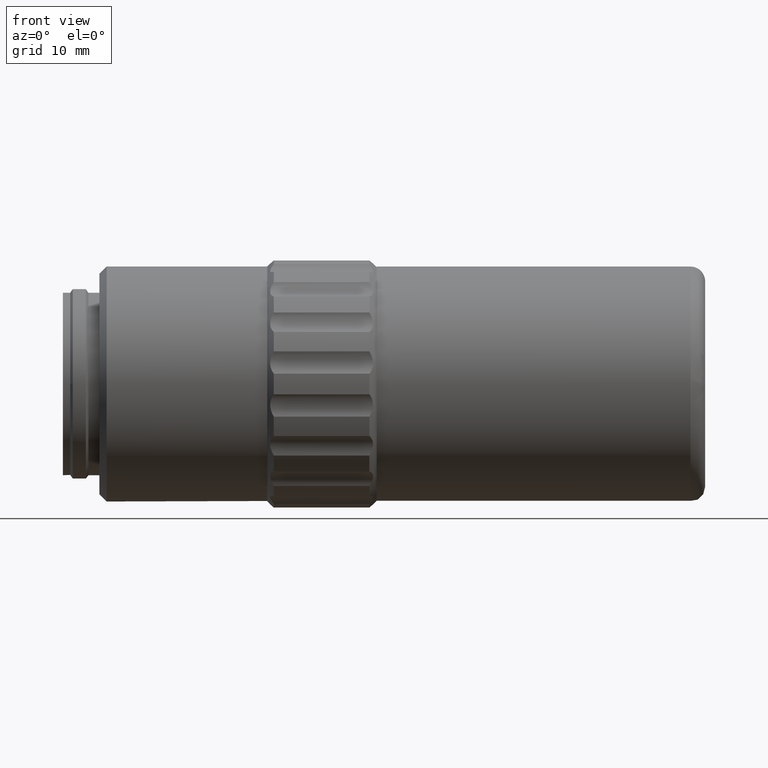
[diagram: clean part render]
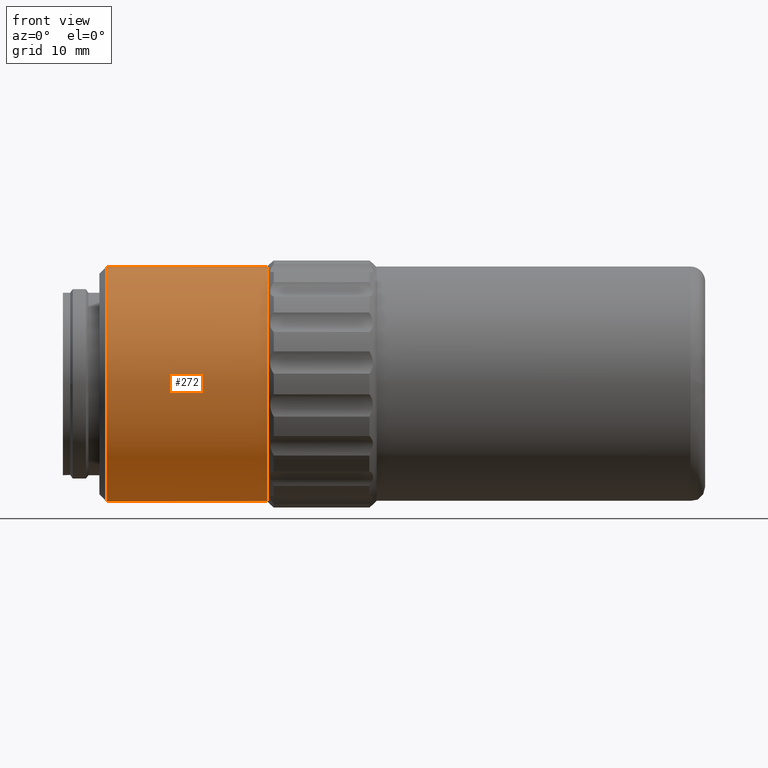
[diagram: same view with one face highlighted and labeled with its STEP entity id]
A machine part, front view. The second image highlights one B-rep face of the part: STEP entity #272.
In plain terms, the highlighted cylindrical surface (bore or boss wall) has radius 16.1 mm, axis along (-1, 0, 0).
Its self-contained STEP definition (entity closure, byte-faithful):
#21 = DIRECTION ( 'NONE',  ( 1.000000000000000000, -0.000000000000000000, -0.000000000000000000 ) ) ;
#137 = EDGE_LOOP ( 'NONE', ( #648 ) ) ;
#272 = ADVANCED_FACE ( 'NONE', ( #618, #280 ), #963, .T. ) ;
#280 = FACE_OUTER_BOUND ( 'NONE', #1927, .T. ) ;
#353 = CARTESIAN_POINT ( 'NONE',  ( 13.33704000000000001, 46.02096199999999726, 0.000000000000000000 ) ) ;
#395 = CARTESIAN_POINT ( 'NONE',  ( 35.33704000000000178, 29.92096199999999584, 0.000000000000000000 ) ) ;
#550 = DIRECTION ( 'NONE',  ( 0.000000000000000000, 0.000000000000000000, 1.000000000000000000 ) ) ;
#608 = DIRECTION ( 'NONE',  ( -1.000000000000000000, 0.000000000000000000, 0.000000000000000000 ) ) ;
#618 = FACE_OUTER_BOUND ( 'NONE', #137, .T. ) ;
#648 = ORIENTED_EDGE ( 'NONE', *, *, #828, .T. ) ;
#651 = AXIS2_PLACEMENT_3D ( 'NONE', #353, #21, #550 ) ;
#685 = ORIENTED_EDGE ( 'NONE', *, *, #1217, .F. ) ;
#828 = EDGE_CURVE ( 'NONE', #1160, #1160, #1796, .T. ) ;
#866 = CIRCLE ( 'NONE', #1328, 16.10000000000000142 ) ;
#963 = CYLINDRICAL_SURFACE ( 'NONE', #2092, 16.10000000000000142 ) ;
#1080 = VERTEX_POINT ( 'NONE', #395 ) ;
#1160 = VERTEX_POINT ( 'NONE', #2025 ) ;
#1217 = EDGE_CURVE ( 'NONE', #1080, #1080, #866, .T. ) ;
#1328 = AXIS2_PLACEMENT_3D ( 'NONE', #1848, #2166, #1837 ) ;
#1665 = DIRECTION ( 'NONE',  ( 0.000000000000000000, 0.000000000000000000, 1.000000000000000000 ) ) ;
#1796 = CIRCLE ( 'NONE', #651, 16.10000000000000142 ) ;
#1837 = DIRECTION ( 'NONE',  ( 0.000000000000000000, -1.000000000000000000, 0.000000000000000000 ) ) ;
#1848 = CARTESIAN_POINT ( 'NONE',  ( 35.33704000000000178, 46.02096199999999726, 0.000000000000000000 ) ) ;
#1927 = EDGE_LOOP ( 'NONE', ( #685 ) ) ;
#2025 = CARTESIAN_POINT ( 'NONE',  ( 13.33704000000000001, 46.02096199999999726, 16.10000000000000142 ) ) ;
#2092 = AXIS2_PLACEMENT_3D ( 'NONE', #2147, #608, #1665 ) ;
#2147 = CARTESIAN_POINT ( 'NONE',  ( 23.83704000000000178, 46.02096199999999726, 0.000000000000000000 ) ) ;
#2166 = DIRECTION ( 'NONE',  ( 1.000000000000000000, 0.000000000000000000, 0.000000000000000000 ) ) ;